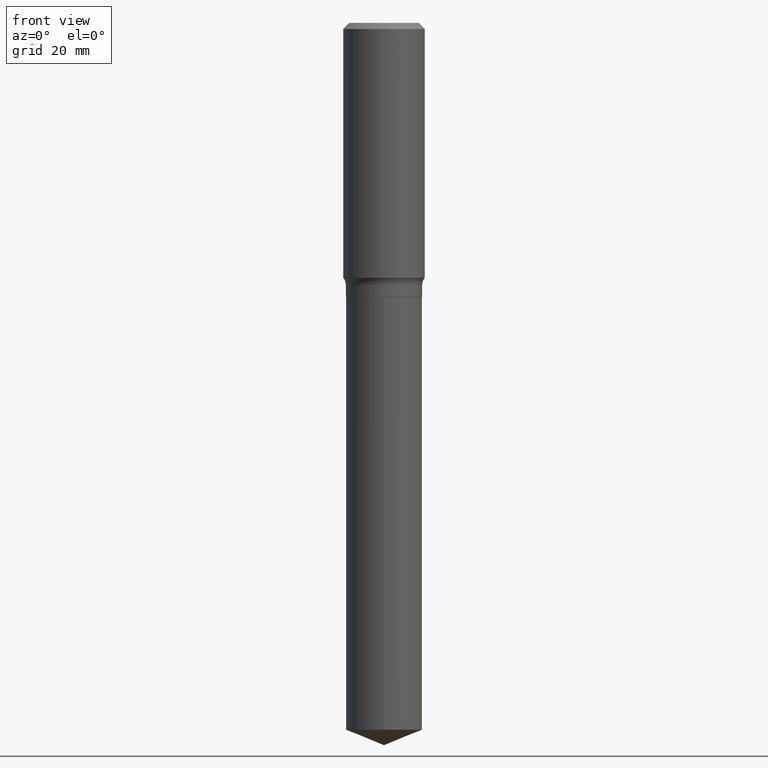
[diagram: clean part render]
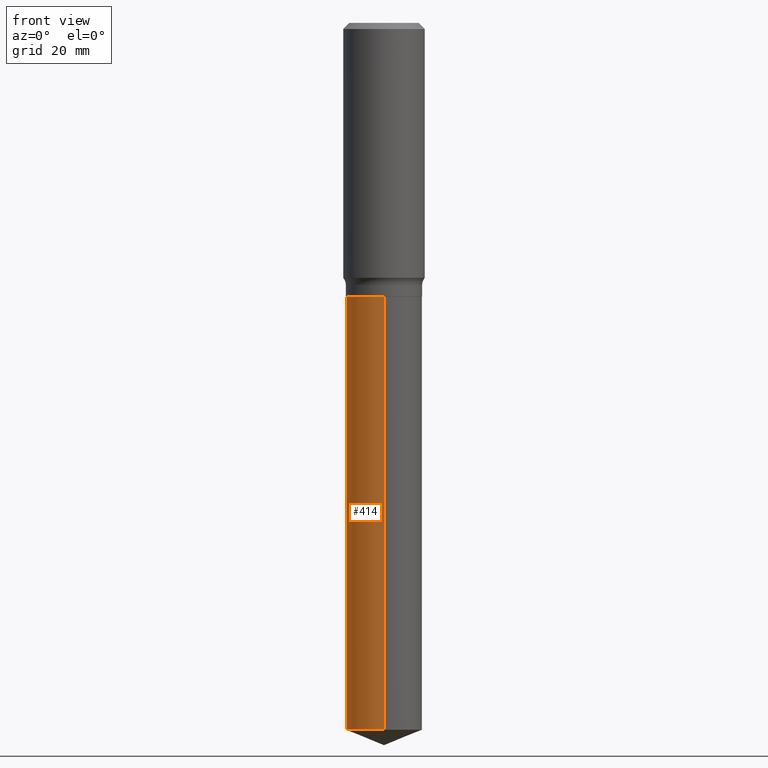
[diagram: same view with one face highlighted and labeled with its STEP entity id]
A machine part, front view. The second image highlights one B-rep face of the part: STEP entity #414.
In plain terms, the highlighted cylindrical surface (partial cylindrical patch) has radius 6.5481 mm, axis along (-0, 0, 1).
Its self-contained STEP definition (entity closure, byte-faithful):
#11 = DIRECTION ( 'NONE',  ( -2.445542093304783004E-29, 3.491376387516568254E-15, 1.000000000000000000 ) ) ;
#18 = EDGE_CURVE ( 'NONE', #303, #448, #95, .T. ) ;
#29 = DIRECTION ( 'NONE',  ( -2.445542093304783004E-29, 3.491376387516568254E-15, 1.000000000000000000 ) ) ;
#33 = CARTESIAN_POINT ( 'NONE',  ( -1.800207778307473807E-15, -0.2578000000000064129, -1.850499999999998924 ) ) ;
#62 = CARTESIAN_POINT ( 'NONE',  ( 1.831779172789583451E-15, 0.2577999999999935343, -1.850500000000000700 ) ) ;
#81 = EDGE_CURVE ( 'NONE', #343, #303, #278, .T. ) ;
#95 = LINE ( 'NONE', #427, #364 ) ;
#112 = DIRECTION ( 'NONE',  ( -6.982962677686265922E-15, -1.000000000000000000, 3.179031800229941890E-15 ) ) ;
#116 = VERTEX_POINT ( 'NONE', #321 ) ;
#129 = AXIS2_PLACEMENT_3D ( 'NONE', #350, #11, #159 ) ;
#148 = EDGE_LOOP ( 'NONE', ( #264, #371, #251, #206 ) ) ;
#159 = DIRECTION ( 'NONE',  ( -6.982962677686265922E-15, -1.000000000000000000, 4.238709066973255853E-15 ) ) ;
#170 = CARTESIAN_POINT ( 'NONE',  ( -1.800207778307402810E-15, -0.2578000000000167380, -4.777842038979694728 ) ) ;
#172 = FACE_OUTER_BOUND ( 'NONE', #148, .T. ) ;
#183 = EDGE_CURVE ( 'NONE', #116, #448, #365, .T. ) ;
#202 = DIRECTION ( 'NONE',  ( -2.445542093304782724E-29, 3.491376387516568254E-15, 1.000000000000000000 ) ) ;
#206 = ORIENTED_EDGE ( 'NONE', *, *, #183, .F. ) ;
#239 = DIRECTION ( 'NONE',  ( -2.445542093304782724E-29, 3.491376387516568254E-15, 1.000000000000000000 ) ) ;
#251 = ORIENTED_EDGE ( 'NONE', *, *, #18, .T. ) ;
#260 = CARTESIAN_POINT ( 'NONE',  ( 1.831779172789655238E-15, 0.2577999999999833203, -4.777842038979697392 ) ) ;
#264 = ORIENTED_EDGE ( 'NONE', *, *, #295, .F. ) ;
#269 = AXIS2_PLACEMENT_3D ( 'NONE', #444, #488, #112 ) ;
#278 = CIRCLE ( 'NONE', #129, 0.2577999999999999736 ) ;
#282 = CYLINDRICAL_SURFACE ( 'NONE', #389, 0.2577999999999999736 ) ;
#285 = LINE ( 'NONE', #62, #469 ) ;
#295 = EDGE_CURVE ( 'NONE', #343, #116, #285, .T. ) ;
#303 = VERTEX_POINT ( 'NONE', #170 ) ;
#321 = CARTESIAN_POINT ( 'NONE',  ( 1.831779172789655238E-15, 0.2577999999999934788, -1.850500000000000700 ) ) ;
#343 = VERTEX_POINT ( 'NONE', #260 ) ;
#350 = CARTESIAN_POINT ( 'NONE',  ( 1.168427820367109338E-28, -1.668143909060755790E-14, -4.777842038979696504 ) ) ;
#354 = DIRECTION ( 'NONE',  ( -6.982962677686265922E-15, -1.000000000000000000, 3.179031800229941890E-15 ) ) ;
#364 = VECTOR ( 'NONE', #239, 39.37007874015748143 ) ;
#365 = CIRCLE ( 'NONE', #269, 0.2577999999999999736 ) ;
#371 = ORIENTED_EDGE ( 'NONE', *, *, #81, .T. ) ;
#389 = AXIS2_PLACEMENT_3D ( 'NONE', #435, #29, #354 ) ;
#414 = ADVANCED_FACE ( 'NONE', ( #172 ), #282, .T. ) ;
#427 = CARTESIAN_POINT ( 'NONE',  ( -1.800207778307473807E-15, -0.2578000000000064129, -1.850499999999998924 ) ) ;
#435 = CARTESIAN_POINT ( 'NONE',  ( 4.525340025845595057E-29, -6.460986217529240299E-15, -1.850499999999999812 ) ) ;
#444 = CARTESIAN_POINT ( 'NONE',  ( 4.525340025845595057E-29, -6.460986217529240299E-15, -1.850499999999999812 ) ) ;
#448 = VERTEX_POINT ( 'NONE', #33 ) ;
#469 = VECTOR ( 'NONE', #202, 39.37007874015748143 ) ;
#488 = DIRECTION ( 'NONE',  ( -2.445542093304783004E-29, 3.491376387516568254E-15, 1.000000000000000000 ) ) ;